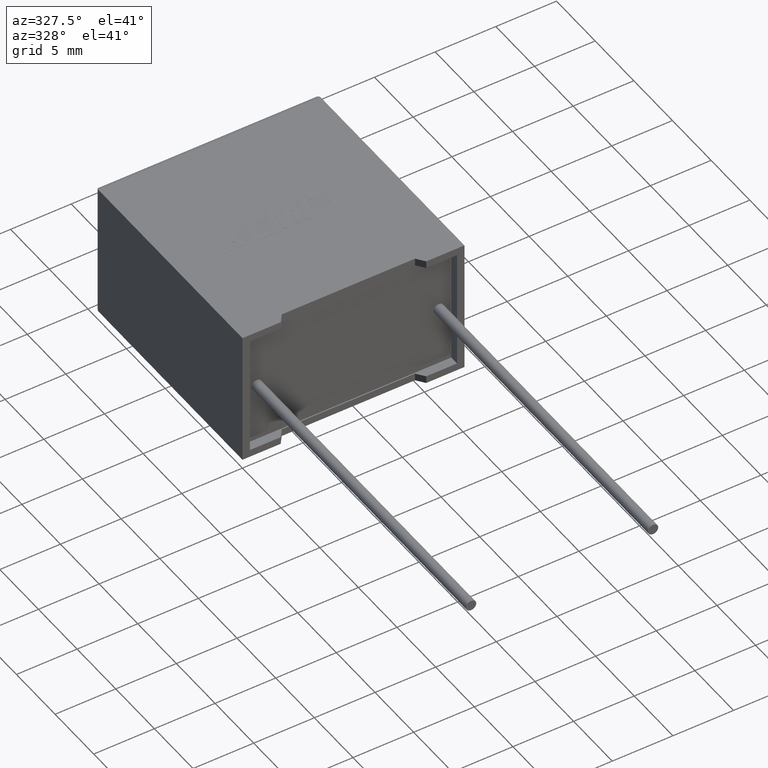
[diagram: clean part render]
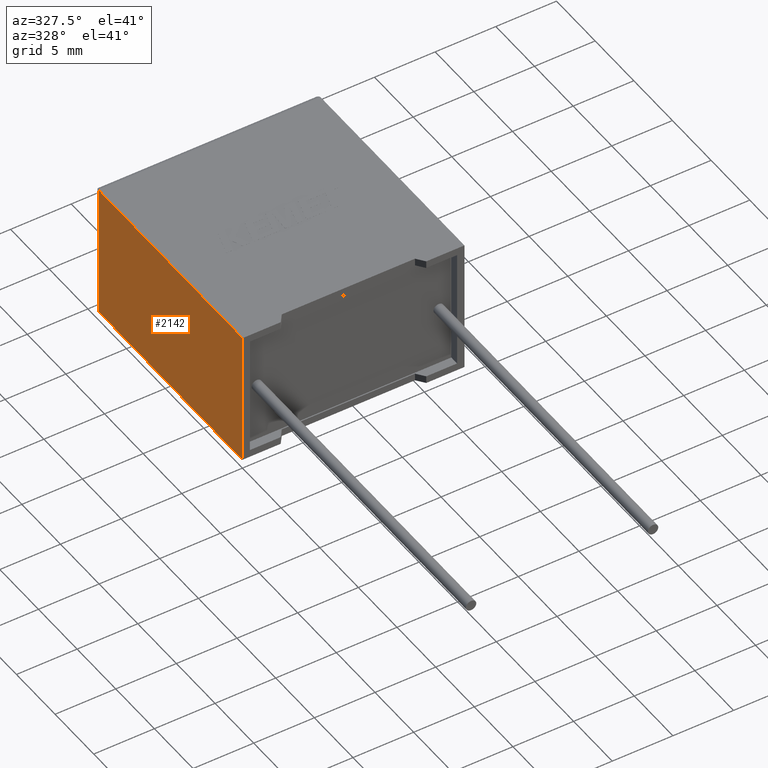
[diagram: same view with one face highlighted and labeled with its STEP entity id]
A machine part, auxiliary view. The second image highlights one B-rep face of the part: STEP entity #2142.
In plain terms, the highlighted planar face has unit normal (1, 0, 0).
Its self-contained STEP definition (entity closure, byte-faithful):
#10 = CARTESIAN_POINT ( 'NONE',  ( 0.000000000000000000, 0.000000000000000000, 11.19999999999999929 ) ) ;
#154 = VECTOR ( 'NONE', #1614, 1000.000000000000000 ) ;
#195 = EDGE_CURVE ( 'NONE', #456, #1575, #1861, .T. ) ;
#233 = ORIENTED_EDGE ( 'NONE', *, *, #1985, .F. ) ;
#456 = VERTEX_POINT ( 'NONE', #963 ) ;
#510 = AXIS2_PLACEMENT_3D ( 'NONE', #2519, #934, #1395 ) ;
#636 = ORIENTED_EDGE ( 'NONE', *, *, #195, .T. ) ;
#679 = EDGE_LOOP ( 'NONE', ( #233, #2571, #636, #3004 ) ) ;
#684 = VECTOR ( 'NONE', #2007, 1000.000000000000000 ) ;
#690 = CARTESIAN_POINT ( 'NONE',  ( 0.000000000000000000, 0.000000000000000000, 0.000000000000000000 ) ) ;
#861 = VECTOR ( 'NONE', #2869, 1000.000000000000000 ) ;
#876 = FACE_OUTER_BOUND ( 'NONE', #679, .T. ) ;
#934 = DIRECTION ( 'NONE',  ( 1.000000000000000000, 0.000000000000000000, 0.000000000000000000 ) ) ;
#963 = CARTESIAN_POINT ( 'NONE',  ( 0.000000000000000000, 18.60000000000000142, 0.000000000000000000 ) ) ;
#1293 = VERTEX_POINT ( 'NONE', #2864 ) ;
#1395 = DIRECTION ( 'NONE',  ( 0.000000000000000000, 0.000000000000000000, -1.000000000000000000 ) ) ;
#1474 = LINE ( 'NONE', #2166, #861 ) ;
#1575 = VERTEX_POINT ( 'NONE', #2076 ) ;
#1614 = DIRECTION ( 'NONE',  ( 0.000000000000000000, 0.000000000000000000, -1.000000000000000000 ) ) ;
#1617 = LINE ( 'NONE', #2553, #2241 ) ;
#1635 = VERTEX_POINT ( 'NONE', #10 ) ;
#1861 = LINE ( 'NONE', #690, #684 ) ;
#1985 = EDGE_CURVE ( 'NONE', #1293, #1635, #1474, .T. ) ;
#2007 = DIRECTION ( 'NONE',  ( -0.000000000000000000, -1.000000000000000000, -0.000000000000000000 ) ) ;
#2076 = CARTESIAN_POINT ( 'NONE',  ( 0.000000000000000000, 0.000000000000000000, 0.000000000000000000 ) ) ;
#2089 = CARTESIAN_POINT ( 'NONE',  ( 0.000000000000000000, 18.60000000000000142, 11.19999999999999929 ) ) ;
#2142 = ADVANCED_FACE ( 'NONE', ( #876 ), #2980, .F. ) ;
#2166 = CARTESIAN_POINT ( 'NONE',  ( 0.000000000000000000, 0.000000000000000000, 11.19999999999999929 ) ) ;
#2170 = EDGE_CURVE ( 'NONE', #1293, #456, #2568, .T. ) ;
#2241 = VECTOR ( 'NONE', #2622, 1000.000000000000000 ) ;
#2519 = CARTESIAN_POINT ( 'NONE',  ( 0.000000000000000000, 0.000000000000000000, 11.19999999999999929 ) ) ;
#2531 = EDGE_CURVE ( 'NONE', #1635, #1575, #1617, .T. ) ;
#2553 = CARTESIAN_POINT ( 'NONE',  ( 0.000000000000000000, 0.000000000000000000, 11.19999999999999929 ) ) ;
#2568 = LINE ( 'NONE', #2089, #154 ) ;
#2571 = ORIENTED_EDGE ( 'NONE', *, *, #2170, .T. ) ;
#2622 = DIRECTION ( 'NONE',  ( -0.000000000000000000, -0.000000000000000000, -1.000000000000000000 ) ) ;
#2864 = CARTESIAN_POINT ( 'NONE',  ( 0.000000000000000000, 18.60000000000000142, 11.19999999999999929 ) ) ;
#2869 = DIRECTION ( 'NONE',  ( -0.000000000000000000, -1.000000000000000000, -0.000000000000000000 ) ) ;
#2980 = PLANE ( 'NONE',  #510 ) ;
#3004 = ORIENTED_EDGE ( 'NONE', *, *, #2531, .F. ) ;